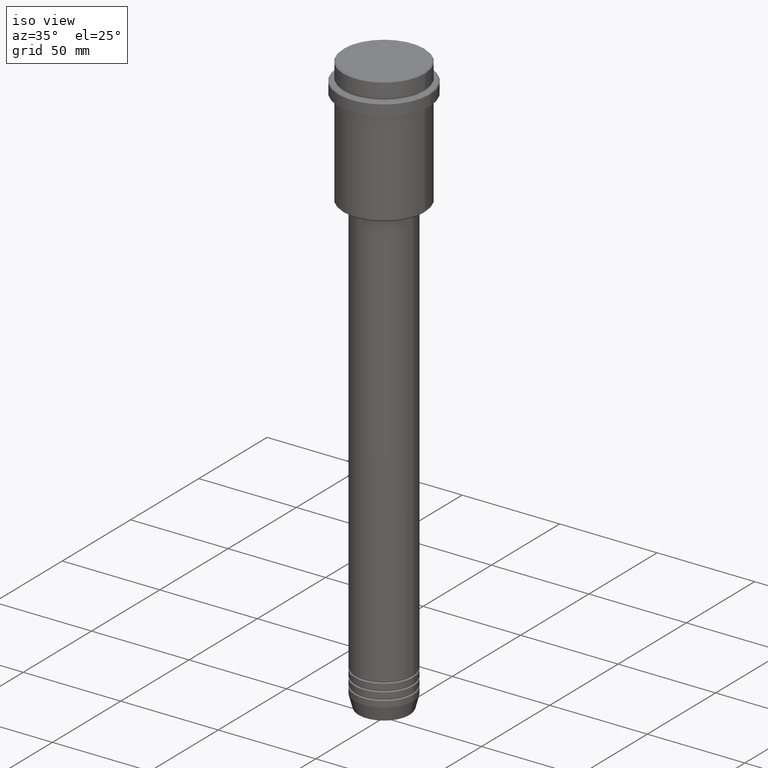
[diagram: clean part render]
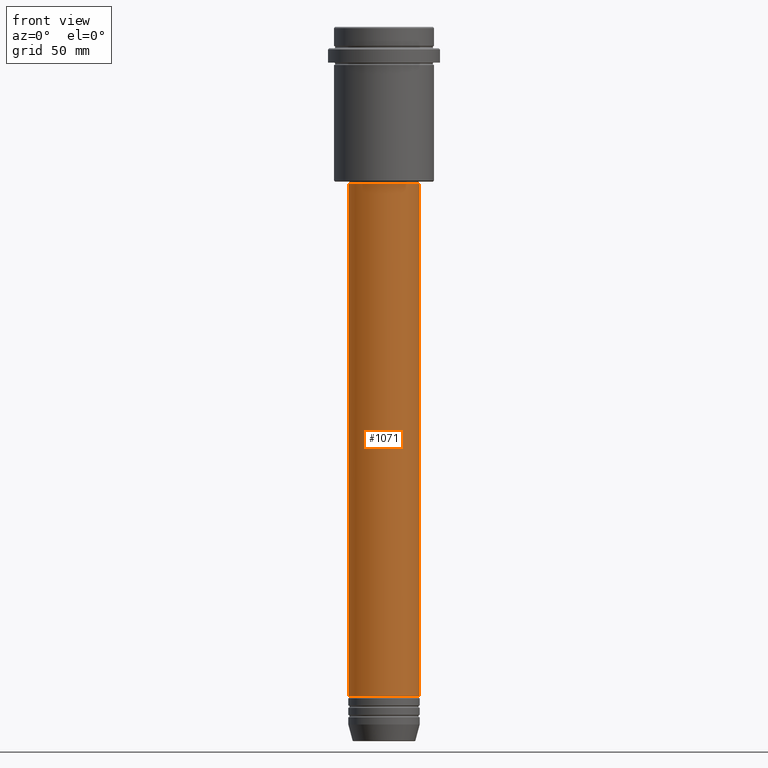
[diagram: tour spotlight — one face highlighted and labeled with its STEP entity id]
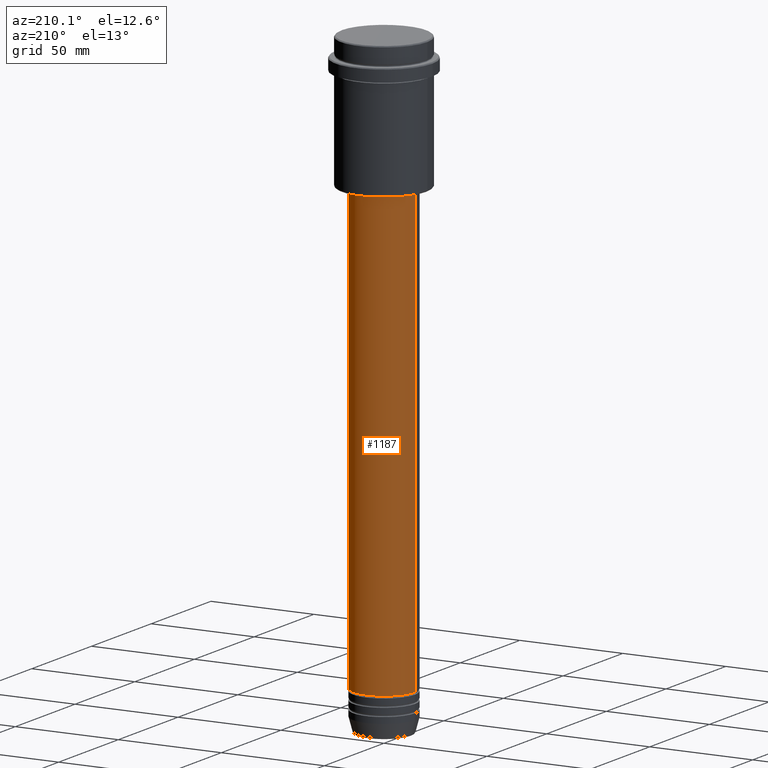
[diagram: tour spotlight — one face highlighted and labeled with its STEP entity id]
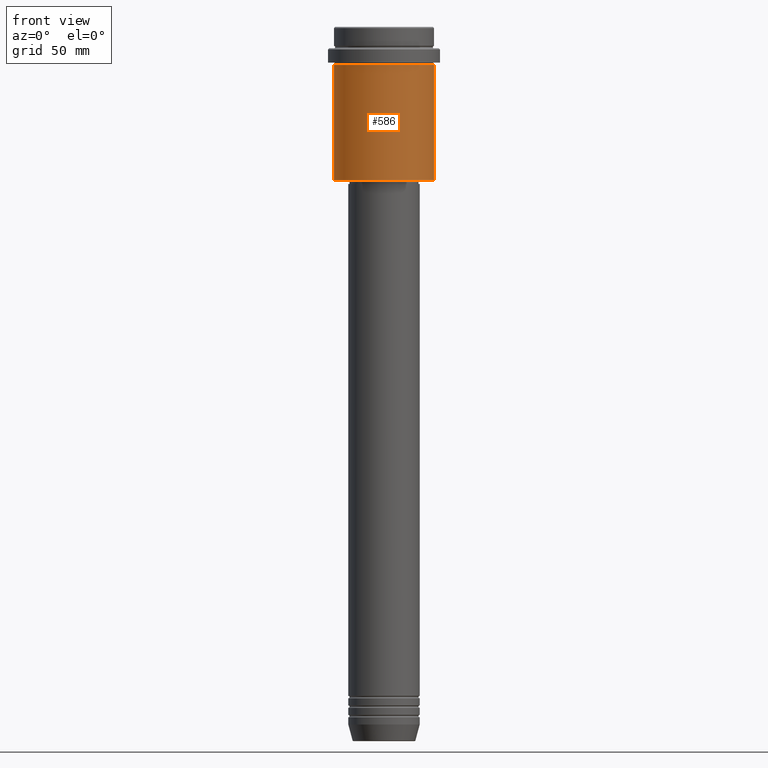
[diagram: tour spotlight — one face highlighted and labeled with its STEP entity id]
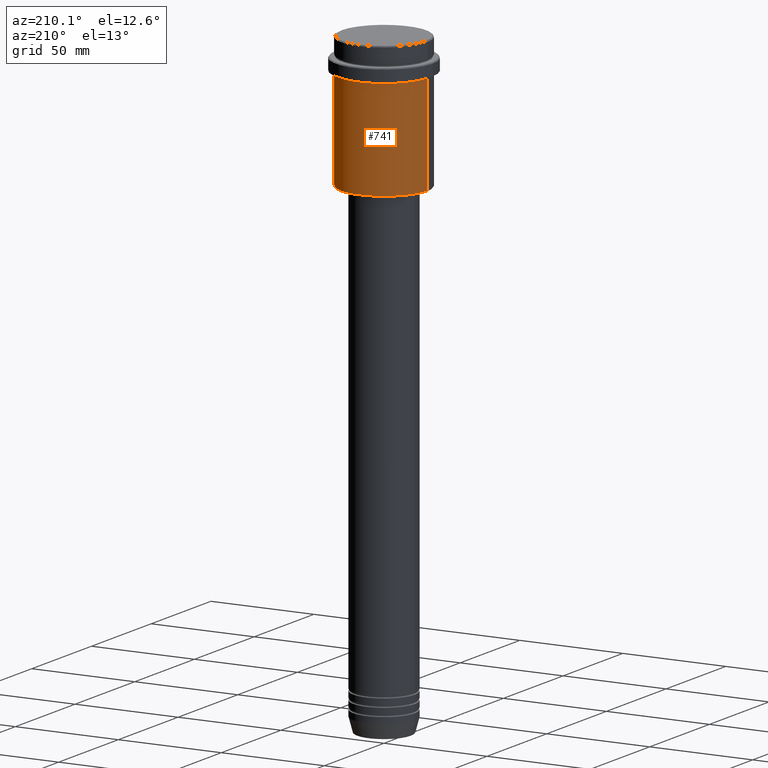
[diagram: tour spotlight — one face highlighted and labeled with its STEP entity id]
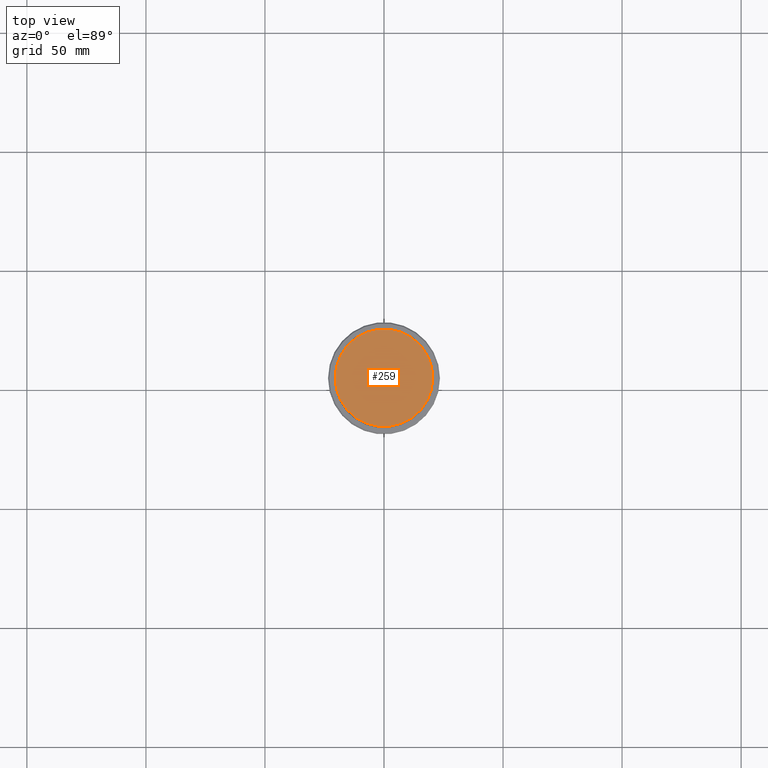
[diagram: tour spotlight — one face highlighted and labeled with its STEP entity id]
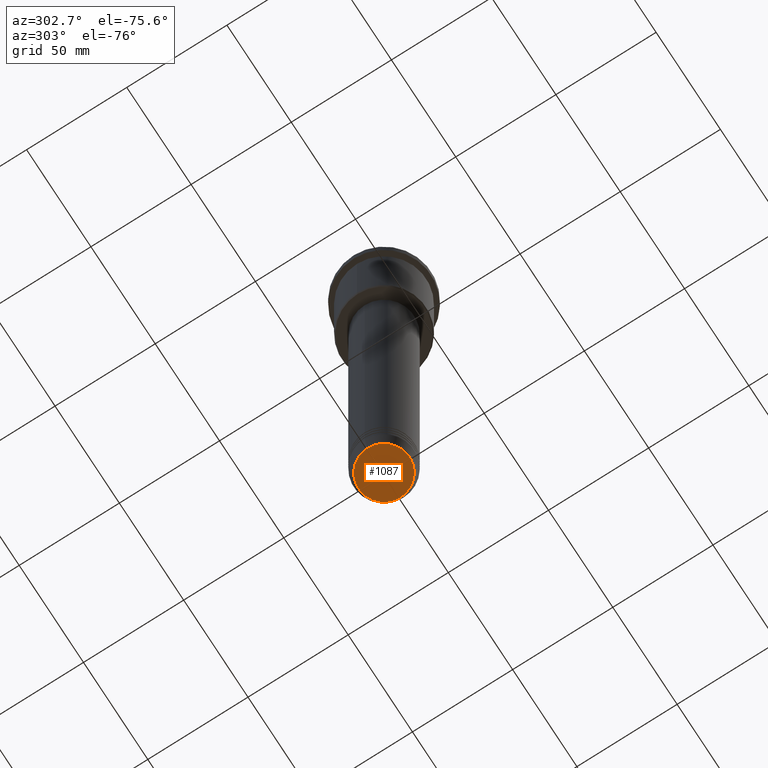
[diagram: tour spotlight — one face highlighted and labeled with its STEP entity id]
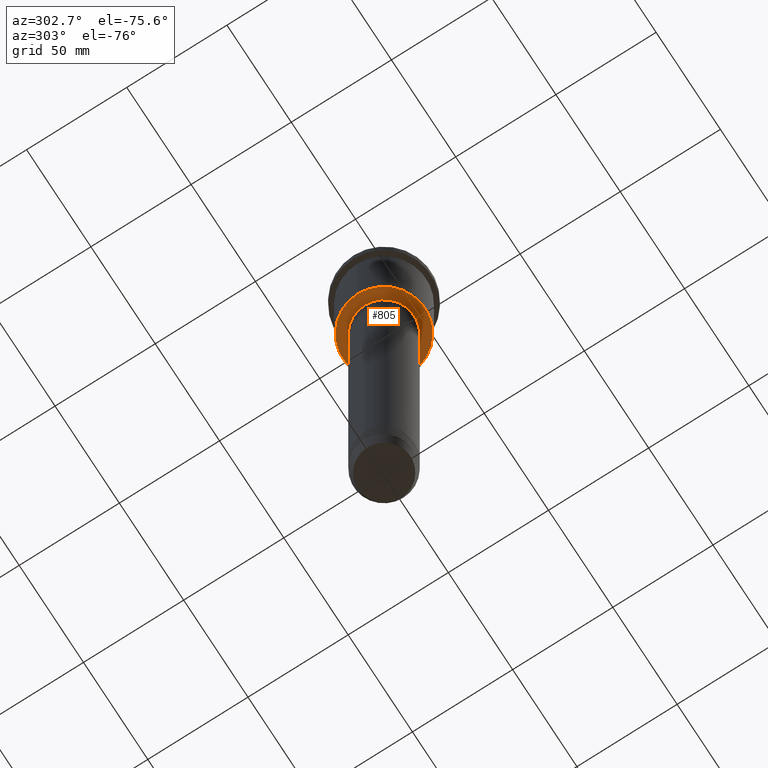
[diagram: tour spotlight — one face highlighted and labeled with its STEP entity id]
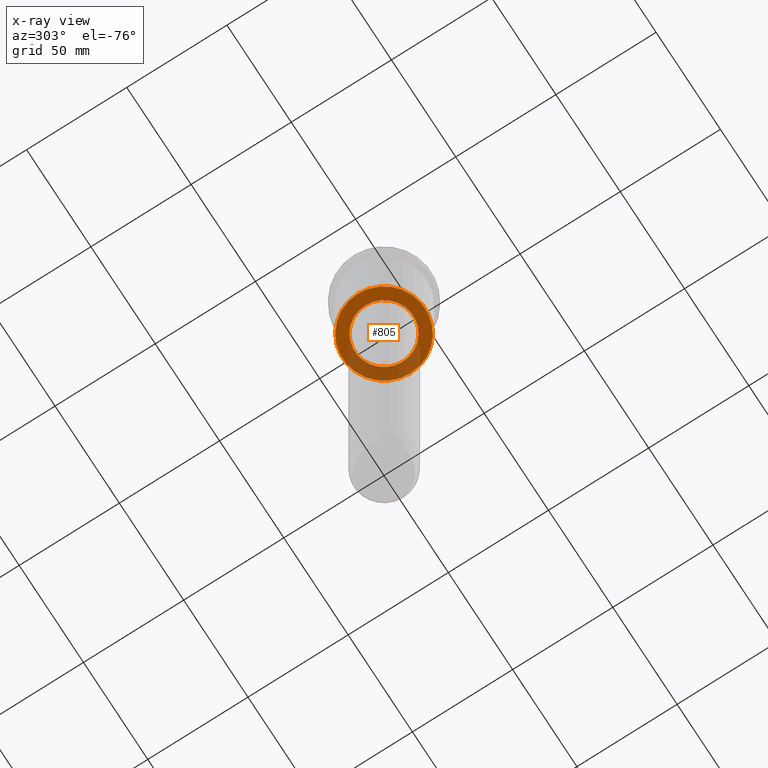
[diagram: x-ray of the same camera — body ghosted, this tour face saturated]
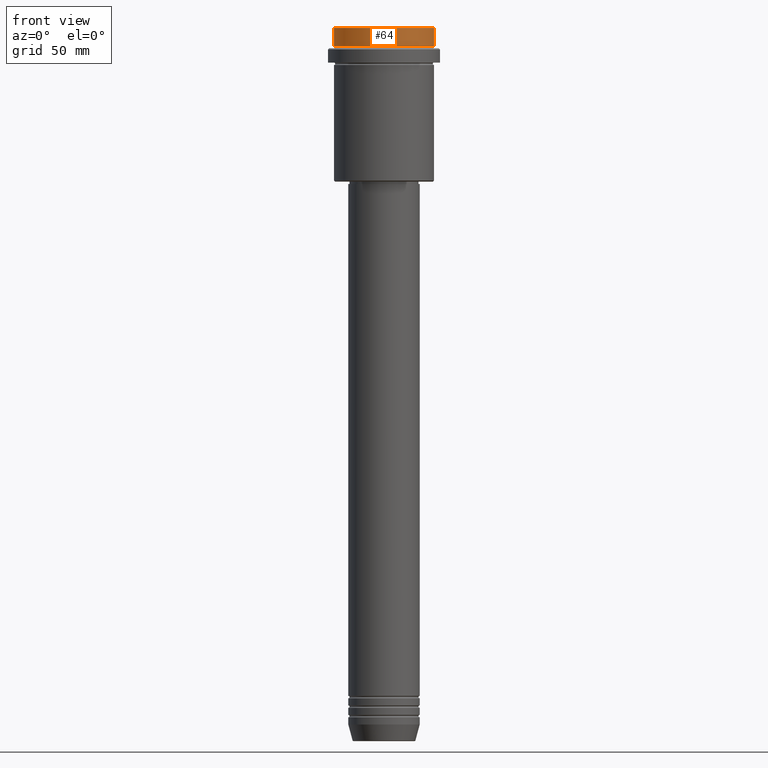
[diagram: tour spotlight — one face highlighted and labeled with its STEP entity id]
A machine part: a face-by-face anatomy tour. The part has 52 B-rep faces; the first image is the clean iso view, then the 8 largest visible faces are spotlighted one at a time (largest first), each with its STEP entity span.

Face 1 — front view, entity #1071. In plain terms, the highlighted cylindrical surface (edge-blend (fillet) strip) has radius 15 mm, axis along (-0, -0, 1).
Definition (entity closure, byte-faithful):
#7 = CARTESIAN_POINT ( 'NONE',  ( 15.00000000000000000, 0.000000000000000000, 0.000000000000000000 ) ) ;
#18 = CARTESIAN_POINT ( 'NONE',  ( 0.000000000000000000, 0.000000000000000000, -280.9999999999998863 ) ) ;
#27 = DIRECTION ( 'NONE',  ( -0.000000000000000000, -0.000000000000000000, 1.000000000000000000 ) ) ;
#32 = CARTESIAN_POINT ( 'NONE',  ( 15.00000000000000000, 0.000000000000000000, -280.9999999999998863 ) ) ;
#35 = ORIENTED_EDGE ( 'NONE', *, *, #990, .T. ) ;
#51 = ORIENTED_EDGE ( 'NONE', *, *, #950, .F. ) ;
#105 = DIRECTION ( 'NONE',  ( 1.000000000000000000, 0.000000000000000000, 0.000000000000000000 ) ) ;
#132 = AXIS2_PLACEMENT_3D ( 'NONE', #994, #1021, #229 ) ;
#141 = DIRECTION ( 'NONE',  ( -0.000000000000000000, -0.000000000000000000, 1.000000000000000000 ) ) ;
#183 = CARTESIAN_POINT ( 'NONE',  ( -15.00000000000000000, 1.836970198721029589E-15, 0.000000000000000000 ) ) ;
#195 = VERTEX_POINT ( 'NONE', #1337 ) ;
#212 = LINE ( 'NONE', #7, #221 ) ;
#221 = VECTOR ( 'NONE', #27, 1000.000000000000000 ) ;
#224 = VERTEX_POINT ( 'NONE', #32 ) ;
#229 = DIRECTION ( 'NONE',  ( 1.000000000000000000, 0.000000000000000000, 0.000000000000000000 ) ) ;
#250 = CYLINDRICAL_SURFACE ( 'NONE', #1309, 15.00000000000000000 ) ;
#269 = VERTEX_POINT ( 'NONE', #1138 ) ;
#428 = CIRCLE ( 'NONE', #1264, 15.00000000000000000 ) ;
#433 = CIRCLE ( 'NONE', #132, 15.00000000000000000 ) ;
#434 = EDGE_CURVE ( 'NONE', #195, #224, #428, .T. ) ;
#464 = ORIENTED_EDGE ( 'NONE', *, *, #434, .T. ) ;
#556 = ORIENTED_EDGE ( 'NONE', *, *, #757, .F. ) ;
#624 = DIRECTION ( 'NONE',  ( -0.000000000000000000, -0.000000000000000000, 1.000000000000000000 ) ) ;
#756 = EDGE_LOOP ( 'NONE', ( #556, #464, #35, #51 ) ) ;
#757 = EDGE_CURVE ( 'NONE', #195, #269, #1079, .T. ) ;
#818 = VECTOR ( 'NONE', #624, 1000.000000000000000 ) ;
#950 = EDGE_CURVE ( 'NONE', #269, #1379, #433, .T. ) ;
#969 = DIRECTION ( 'NONE',  ( -0.000000000000000000, -0.000000000000000000, 1.000000000000000000 ) ) ;
#990 = EDGE_CURVE ( 'NONE', #224, #1379, #212, .T. ) ;
#994 = CARTESIAN_POINT ( 'NONE',  ( 0.000000000000000000, 0.000000000000000000, -65.99999999999991473 ) ) ;
#1021 = DIRECTION ( 'NONE',  ( -0.000000000000000000, -0.000000000000000000, 1.000000000000000000 ) ) ;
#1071 = ADVANCED_FACE ( 'NONE', ( #1341 ), #250, .T. ) ;
#1079 = LINE ( 'NONE', #183, #818 ) ;
#1126 = CARTESIAN_POINT ( 'NONE',  ( 0.000000000000000000, 0.000000000000000000, 0.000000000000000000 ) ) ;
#1138 = CARTESIAN_POINT ( 'NONE',  ( -15.00000000000000000, 1.836970198721029589E-15, -65.99999999999991473 ) ) ;
#1264 = AXIS2_PLACEMENT_3D ( 'NONE', #18, #969, #105 ) ;
#1309 = AXIS2_PLACEMENT_3D ( 'NONE', #1126, #141, #1353 ) ;
#1337 = CARTESIAN_POINT ( 'NONE',  ( -15.00000000000000000, 1.836970198721029589E-15, -280.9999999999998863 ) ) ;
#1341 = FACE_OUTER_BOUND ( 'NONE', #756, .T. ) ;
#1353 = DIRECTION ( 'NONE',  ( 1.000000000000000000, 0.000000000000000000, 0.000000000000000000 ) ) ;
#1379 = VERTEX_POINT ( 'NONE', #1400 ) ;
#1400 = CARTESIAN_POINT ( 'NONE',  ( 15.00000000000000000, 0.000000000000000000, -65.99999999999991473 ) ) ;

Face 2 — auxiliary view, entity #1187. In plain terms, the highlighted cylindrical surface (edge-blend (fillet) strip) has radius 15 mm, axis along (-0, -0, 1).
Definition (entity closure, byte-faithful):
#7 = CARTESIAN_POINT ( 'NONE',  ( 15.00000000000000000, 0.000000000000000000, 0.000000000000000000 ) ) ;
#13 = FACE_OUTER_BOUND ( 'NONE', #1256, .T. ) ;
#27 = DIRECTION ( 'NONE',  ( -0.000000000000000000, -0.000000000000000000, 1.000000000000000000 ) ) ;
#32 = CARTESIAN_POINT ( 'NONE',  ( 15.00000000000000000, 0.000000000000000000, -280.9999999999998863 ) ) ;
#87 = ORIENTED_EDGE ( 'NONE', *, *, #392, .F. ) ;
#130 = AXIS2_PLACEMENT_3D ( 'NONE', #1099, #1077, #555 ) ;
#183 = CARTESIAN_POINT ( 'NONE',  ( -15.00000000000000000, 1.836970198721029589E-15, 0.000000000000000000 ) ) ;
#195 = VERTEX_POINT ( 'NONE', #1337 ) ;
#212 = LINE ( 'NONE', #7, #221 ) ;
#219 = CIRCLE ( 'NONE', #1023, 15.00000000000000000 ) ;
#221 = VECTOR ( 'NONE', #27, 1000.000000000000000 ) ;
#224 = VERTEX_POINT ( 'NONE', #32 ) ;
#269 = VERTEX_POINT ( 'NONE', #1138 ) ;
#392 = EDGE_CURVE ( 'NONE', #1379, #269, #219, .T. ) ;
#422 = EDGE_CURVE ( 'NONE', #224, #195, #454, .T. ) ;
#454 = CIRCLE ( 'NONE', #130, 15.00000000000000000 ) ;
#493 = CARTESIAN_POINT ( 'NONE',  ( 0.000000000000000000, 0.000000000000000000, 0.000000000000000000 ) ) ;
#555 = DIRECTION ( 'NONE',  ( 1.000000000000000000, 0.000000000000000000, 0.000000000000000000 ) ) ;
#572 = ORIENTED_EDGE ( 'NONE', *, *, #757, .T. ) ;
#624 = DIRECTION ( 'NONE',  ( -0.000000000000000000, -0.000000000000000000, 1.000000000000000000 ) ) ;
#658 = CARTESIAN_POINT ( 'NONE',  ( 0.000000000000000000, 0.000000000000000000, -65.99999999999991473 ) ) ;
#692 = CYLINDRICAL_SURFACE ( 'NONE', #733, 15.00000000000000000 ) ;
#733 = AXIS2_PLACEMENT_3D ( 'NONE', #493, #1356, #807 ) ;
#752 = DIRECTION ( 'NONE',  ( 1.000000000000000000, 0.000000000000000000, 0.000000000000000000 ) ) ;
#757 = EDGE_CURVE ( 'NONE', #195, #269, #1079, .T. ) ;
#807 = DIRECTION ( 'NONE',  ( 1.000000000000000000, 0.000000000000000000, 0.000000000000000000 ) ) ;
#818 = VECTOR ( 'NONE', #624, 1000.000000000000000 ) ;
#872 = DIRECTION ( 'NONE',  ( -0.000000000000000000, -0.000000000000000000, 1.000000000000000000 ) ) ;
#990 = EDGE_CURVE ( 'NONE', #224, #1379, #212, .T. ) ;
#1014 = ORIENTED_EDGE ( 'NONE', *, *, #990, .F. ) ;
#1023 = AXIS2_PLACEMENT_3D ( 'NONE', #658, #872, #752 ) ;
#1077 = DIRECTION ( 'NONE',  ( -0.000000000000000000, -0.000000000000000000, 1.000000000000000000 ) ) ;
#1079 = LINE ( 'NONE', #183, #818 ) ;
#1099 = CARTESIAN_POINT ( 'NONE',  ( 0.000000000000000000, 0.000000000000000000, -280.9999999999998863 ) ) ;
#1138 = CARTESIAN_POINT ( 'NONE',  ( -15.00000000000000000, 1.836970198721029589E-15, -65.99999999999991473 ) ) ;
#1187 = ADVANCED_FACE ( 'NONE', ( #13 ), #692, .T. ) ;
#1239 = ORIENTED_EDGE ( 'NONE', *, *, #422, .T. ) ;
#1256 = EDGE_LOOP ( 'NONE', ( #1239, #572, #87, #1014 ) ) ;
#1337 = CARTESIAN_POINT ( 'NONE',  ( -15.00000000000000000, 1.836970198721029589E-15, -280.9999999999998863 ) ) ;
#1356 = DIRECTION ( 'NONE',  ( -0.000000000000000000, -0.000000000000000000, 1.000000000000000000 ) ) ;
#1379 = VERTEX_POINT ( 'NONE', #1400 ) ;
#1400 = CARTESIAN_POINT ( 'NONE',  ( 15.00000000000000000, 0.000000000000000000, -65.99999999999991473 ) ) ;

Face 3 — front view, entity #586. In plain terms, the highlighted cylindrical surface (partial cylindrical patch) has radius 21 mm, axis along (-0, -0, 1).
Definition (entity closure, byte-faithful):
#80 = EDGE_CURVE ( 'NONE', #260, #826, #239, .T. ) ;
#148 = EDGE_LOOP ( 'NONE', ( #729, #1022, #1010, #626 ) ) ;
#172 = VECTOR ( 'NONE', #205, 1000.000000000000000 ) ;
#205 = DIRECTION ( 'NONE',  ( -0.000000000000000000, -0.000000000000000000, 1.000000000000000000 ) ) ;
#239 = CIRCLE ( 'NONE', #1395, 20.99999999999999645 ) ;
#260 = VERTEX_POINT ( 'NONE', #699 ) ;
#375 = CYLINDRICAL_SURFACE ( 'NONE', #611, 20.99999999999999645 ) ;
#403 = EDGE_CURVE ( 'NONE', #826, #1004, #1194, .T. ) ;
#477 = CARTESIAN_POINT ( 'NONE',  ( 20.99999999999999645, 0.000000000000000000, -16.00000000000000355 ) ) ;
#500 = CIRCLE ( 'NONE', #660, 20.99999999999999645 ) ;
#521 = CARTESIAN_POINT ( 'NONE',  ( 0.000000000000000000, 0.000000000000000000, -16.00000000000000355 ) ) ;
#554 = DIRECTION ( 'NONE',  ( -0.000000000000000000, -0.000000000000000000, 1.000000000000000000 ) ) ;
#557 = DIRECTION ( 'NONE',  ( -0.000000000000000000, -0.000000000000000000, 1.000000000000000000 ) ) ;
#586 = ADVANCED_FACE ( 'NONE', ( #798 ), #375, .T. ) ;
#599 = DIRECTION ( 'NONE',  ( -0.000000000000000000, -0.000000000000000000, 1.000000000000000000 ) ) ;
#611 = AXIS2_PLACEMENT_3D ( 'NONE', #709, #599, #1257 ) ;
#626 = ORIENTED_EDGE ( 'NONE', *, *, #717, .F. ) ;
#660 = AXIS2_PLACEMENT_3D ( 'NONE', #521, #827, #1389 ) ;
#680 = VECTOR ( 'NONE', #557, 1000.000000000000000 ) ;
#699 = CARTESIAN_POINT ( 'NONE',  ( -20.99999999999999645, 2.571758278209441267E-15, -64.49999999999992895 ) ) ;
#709 = CARTESIAN_POINT ( 'NONE',  ( 0.000000000000000000, 0.000000000000000000, 0.000000000000000000 ) ) ;
#717 = EDGE_CURVE ( 'NONE', #988, #1004, #500, .T. ) ;
#729 = ORIENTED_EDGE ( 'NONE', *, *, #1411, .F. ) ;
#798 = FACE_OUTER_BOUND ( 'NONE', #148, .T. ) ;
#826 = VERTEX_POINT ( 'NONE', #923 ) ;
#827 = DIRECTION ( 'NONE',  ( -0.000000000000000000, -0.000000000000000000, 1.000000000000000000 ) ) ;
#868 = CARTESIAN_POINT ( 'NONE',  ( -20.99999999999999645, 2.571758278209441267E-15, -16.00000000000000355 ) ) ;
#923 = CARTESIAN_POINT ( 'NONE',  ( 20.99999999999999645, 0.000000000000000000, -64.49999999999992895 ) ) ;
#968 = CARTESIAN_POINT ( 'NONE',  ( 0.000000000000000000, 0.000000000000000000, -64.49999999999992895 ) ) ;
#986 = DIRECTION ( 'NONE',  ( -1.000000000000000000, 0.000000000000000000, 0.000000000000000000 ) ) ;
#987 = CARTESIAN_POINT ( 'NONE',  ( 20.99999999999999645, 0.000000000000000000, 0.000000000000000000 ) ) ;
#988 = VERTEX_POINT ( 'NONE', #868 ) ;
#1004 = VERTEX_POINT ( 'NONE', #477 ) ;
#1010 = ORIENTED_EDGE ( 'NONE', *, *, #403, .T. ) ;
#1022 = ORIENTED_EDGE ( 'NONE', *, *, #80, .T. ) ;
#1194 = LINE ( 'NONE', #987, #172 ) ;
#1206 = CARTESIAN_POINT ( 'NONE',  ( -20.99999999999999645, 2.571758278209441267E-15, 0.000000000000000000 ) ) ;
#1257 = DIRECTION ( 'NONE',  ( 1.000000000000000000, 0.000000000000000000, 0.000000000000000000 ) ) ;
#1310 = LINE ( 'NONE', #1206, #680 ) ;
#1389 = DIRECTION ( 'NONE',  ( 1.000000000000000000, 0.000000000000000000, 0.000000000000000000 ) ) ;
#1395 = AXIS2_PLACEMENT_3D ( 'NONE', #968, #554, #986 ) ;
#1411 = EDGE_CURVE ( 'NONE', #260, #988, #1310, .T. ) ;

Face 4 — auxiliary view, entity #741. In plain terms, the highlighted cylindrical surface (partial cylindrical patch) has radius 21 mm, axis along (-0, -0, 1).
Definition (entity closure, byte-faithful):
#16 = DIRECTION ( 'NONE',  ( -0.000000000000000000, -0.000000000000000000, 1.000000000000000000 ) ) ;
#22 = CARTESIAN_POINT ( 'NONE',  ( 0.000000000000000000, 0.000000000000000000, -64.49999999999992895 ) ) ;
#30 = AXIS2_PLACEMENT_3D ( 'NONE', #285, #84, #761 ) ;
#84 = DIRECTION ( 'NONE',  ( -0.000000000000000000, -0.000000000000000000, 1.000000000000000000 ) ) ;
#151 = AXIS2_PLACEMENT_3D ( 'NONE', #22, #16, #442 ) ;
#172 = VECTOR ( 'NONE', #205, 1000.000000000000000 ) ;
#197 = CARTESIAN_POINT ( 'NONE',  ( 0.000000000000000000, 0.000000000000000000, 0.000000000000000000 ) ) ;
#205 = DIRECTION ( 'NONE',  ( -0.000000000000000000, -0.000000000000000000, 1.000000000000000000 ) ) ;
#260 = VERTEX_POINT ( 'NONE', #699 ) ;
#285 = CARTESIAN_POINT ( 'NONE',  ( 0.000000000000000000, 0.000000000000000000, -16.00000000000000355 ) ) ;
#312 = FACE_OUTER_BOUND ( 'NONE', #395, .T. ) ;
#395 = EDGE_LOOP ( 'NONE', ( #1376, #723, #1151, #843 ) ) ;
#403 = EDGE_CURVE ( 'NONE', #826, #1004, #1194, .T. ) ;
#431 = AXIS2_PLACEMENT_3D ( 'NONE', #197, #1417, #1398 ) ;
#442 = DIRECTION ( 'NONE',  ( -1.000000000000000000, 0.000000000000000000, 0.000000000000000000 ) ) ;
#455 = CIRCLE ( 'NONE', #30, 20.99999999999999645 ) ;
#477 = CARTESIAN_POINT ( 'NONE',  ( 20.99999999999999645, 0.000000000000000000, -16.00000000000000355 ) ) ;
#514 = EDGE_CURVE ( 'NONE', #826, #260, #749, .T. ) ;
#557 = DIRECTION ( 'NONE',  ( -0.000000000000000000, -0.000000000000000000, 1.000000000000000000 ) ) ;
#680 = VECTOR ( 'NONE', #557, 1000.000000000000000 ) ;
#699 = CARTESIAN_POINT ( 'NONE',  ( -20.99999999999999645, 2.571758278209441267E-15, -64.49999999999992895 ) ) ;
#723 = ORIENTED_EDGE ( 'NONE', *, *, #1411, .T. ) ;
#741 = ADVANCED_FACE ( 'NONE', ( #312 ), #960, .T. ) ;
#749 = CIRCLE ( 'NONE', #151, 20.99999999999999645 ) ;
#761 = DIRECTION ( 'NONE',  ( 1.000000000000000000, 0.000000000000000000, 0.000000000000000000 ) ) ;
#783 = EDGE_CURVE ( 'NONE', #1004, #988, #455, .T. ) ;
#826 = VERTEX_POINT ( 'NONE', #923 ) ;
#843 = ORIENTED_EDGE ( 'NONE', *, *, #403, .F. ) ;
#868 = CARTESIAN_POINT ( 'NONE',  ( -20.99999999999999645, 2.571758278209441267E-15, -16.00000000000000355 ) ) ;
#923 = CARTESIAN_POINT ( 'NONE',  ( 20.99999999999999645, 0.000000000000000000, -64.49999999999992895 ) ) ;
#960 = CYLINDRICAL_SURFACE ( 'NONE', #431, 20.99999999999999645 ) ;
#987 = CARTESIAN_POINT ( 'NONE',  ( 20.99999999999999645, 0.000000000000000000, 0.000000000000000000 ) ) ;
#988 = VERTEX_POINT ( 'NONE', #868 ) ;
#1004 = VERTEX_POINT ( 'NONE', #477 ) ;
#1151 = ORIENTED_EDGE ( 'NONE', *, *, #783, .F. ) ;
#1194 = LINE ( 'NONE', #987, #172 ) ;
#1206 = CARTESIAN_POINT ( 'NONE',  ( -20.99999999999999645, 2.571758278209441267E-15, 0.000000000000000000 ) ) ;
#1310 = LINE ( 'NONE', #1206, #680 ) ;
#1376 = ORIENTED_EDGE ( 'NONE', *, *, #514, .T. ) ;
#1398 = DIRECTION ( 'NONE',  ( 1.000000000000000000, 0.000000000000000000, 0.000000000000000000 ) ) ;
#1411 = EDGE_CURVE ( 'NONE', #260, #988, #1310, .T. ) ;
#1417 = DIRECTION ( 'NONE',  ( -0.000000000000000000, -0.000000000000000000, 1.000000000000000000 ) ) ;

Face 5 — top view, entity #259. In plain terms, the highlighted planar face has unit normal (0, -0, 1).
Definition (entity closure, byte-faithful):
#36 = FACE_OUTER_BOUND ( 'NONE', #176, .T. ) ;
#38 = VERTEX_POINT ( 'NONE', #992 ) ;
#39 = EDGE_CURVE ( 'NONE', #38, #147, #973, .T. ) ;
#104 = DIRECTION ( 'NONE',  ( 1.000000000000000000, 0.000000000000000000, 0.000000000000000000 ) ) ;
#147 = VERTEX_POINT ( 'NONE', #543 ) ;
#176 = EDGE_LOOP ( 'NONE', ( #505, #866 ) ) ;
#246 = DIRECTION ( 'NONE',  ( 1.000000000000000000, 0.000000000000000000, 0.000000000000000000 ) ) ;
#257 = PLANE ( 'NONE',  #630 ) ;
#259 = ADVANCED_FACE ( 'NONE', ( #36 ), #257, .T. ) ;
#358 = AXIS2_PLACEMENT_3D ( 'NONE', #1409, #1179, #417 ) ;
#417 = DIRECTION ( 'NONE',  ( 1.000000000000000000, 0.000000000000000000, 0.000000000000000000 ) ) ;
#461 = CARTESIAN_POINT ( 'NONE',  ( 0.000000000000000000, 0.000000000000000000, 0.000000000000000000 ) ) ;
#505 = ORIENTED_EDGE ( 'NONE', *, *, #39, .T. ) ;
#543 = CARTESIAN_POINT ( 'NONE',  ( 20.50000000000001776, 2.541142108230758663E-15, 0.000000000000000000 ) ) ;
#588 = AXIS2_PLACEMENT_3D ( 'NONE', #751, #1193, #104 ) ;
#630 = AXIS2_PLACEMENT_3D ( 'NONE', #461, #1237, #246 ) ;
#672 = EDGE_CURVE ( 'NONE', #147, #38, #774, .T. ) ;
#751 = CARTESIAN_POINT ( 'NONE',  ( 0.000000000000000000, 0.000000000000000000, 0.000000000000000000 ) ) ;
#774 = CIRCLE ( 'NONE', #358, 20.50000000000001776 ) ;
#866 = ORIENTED_EDGE ( 'NONE', *, *, #672, .T. ) ;
#973 = CIRCLE ( 'NONE', #588, 20.50000000000001776 ) ;
#992 = CARTESIAN_POINT ( 'NONE',  ( -20.50000000000001776, 0.000000000000000000, 0.000000000000000000 ) ) ;
#1179 = DIRECTION ( 'NONE',  ( -0.000000000000000000, -0.000000000000000000, 1.000000000000000000 ) ) ;
#1193 = DIRECTION ( 'NONE',  ( -0.000000000000000000, -0.000000000000000000, 1.000000000000000000 ) ) ;
#1237 = DIRECTION ( 'NONE',  ( 0.000000000000000000, -0.000000000000000000, 1.000000000000000000 ) ) ;
#1409 = CARTESIAN_POINT ( 'NONE',  ( 0.000000000000000000, 0.000000000000000000, 0.000000000000000000 ) ) ;

Face 6 — auxiliary view, entity #1087. In plain terms, the highlighted planar face has unit normal (0, -0, 1).
Definition (entity closure, byte-faithful):
#45 = CARTESIAN_POINT ( 'NONE',  ( 12.74069215899265828, 0.000000000000000000, -300.0000000000000000 ) ) ;
#336 = CARTESIAN_POINT ( 'NONE',  ( 0.000000000000000000, 0.000000000000000000, -300.0000000000000000 ) ) ;
#355 = CIRCLE ( 'NONE', #835, 12.74069215899265828 ) ;
#360 = FACE_OUTER_BOUND ( 'NONE', #670, .T. ) ;
#430 = ORIENTED_EDGE ( 'NONE', *, *, #1178, .T. ) ;
#605 = EDGE_CURVE ( 'NONE', #792, #1176, #355, .T. ) ;
#635 = AXIS2_PLACEMENT_3D ( 'NONE', #1147, #924, #1258 ) ;
#670 = EDGE_LOOP ( 'NONE', ( #922, #430 ) ) ;
#780 = DIRECTION ( 'NONE',  ( 0.000000000000000000, 0.000000000000000000, -1.000000000000000000 ) ) ;
#792 = VERTEX_POINT ( 'NONE', #45 ) ;
#796 = CIRCLE ( 'NONE', #1268, 12.74069215899265828 ) ;
#835 = AXIS2_PLACEMENT_3D ( 'NONE', #1136, #1267, #1152 ) ;
#922 = ORIENTED_EDGE ( 'NONE', *, *, #605, .T. ) ;
#924 = DIRECTION ( 'NONE',  ( 0.000000000000000000, -0.000000000000000000, 1.000000000000000000 ) ) ;
#985 = CARTESIAN_POINT ( 'NONE',  ( -12.74069215899265828, 1.589857736427680246E-15, -300.0000000000000000 ) ) ;
#1087 = ADVANCED_FACE ( 'NONE', ( #360 ), #1245, .F. ) ;
#1112 = DIRECTION ( 'NONE',  ( 1.000000000000000000, 0.000000000000000000, 0.000000000000000000 ) ) ;
#1136 = CARTESIAN_POINT ( 'NONE',  ( 0.000000000000000000, 0.000000000000000000, -300.0000000000000000 ) ) ;
#1147 = CARTESIAN_POINT ( 'NONE',  ( 0.000000000000000000, 0.000000000000000000, -300.0000000000000000 ) ) ;
#1152 = DIRECTION ( 'NONE',  ( 1.000000000000000000, 0.000000000000000000, 0.000000000000000000 ) ) ;
#1176 = VERTEX_POINT ( 'NONE', #985 ) ;
#1178 = EDGE_CURVE ( 'NONE', #1176, #792, #796, .T. ) ;
#1245 = PLANE ( 'NONE',  #635 ) ;
#1258 = DIRECTION ( 'NONE',  ( 1.000000000000000000, 0.000000000000000000, 0.000000000000000000 ) ) ;
#1267 = DIRECTION ( 'NONE',  ( 0.000000000000000000, 0.000000000000000000, -1.000000000000000000 ) ) ;
#1268 = AXIS2_PLACEMENT_3D ( 'NONE', #336, #780, #1112 ) ;

Face 7 — auxiliary view, entity #805. An x-ray twin of the same camera follows (body ghosted, this face saturated) — the face is partly hidden behind the body. In plain terms, the highlighted planar face has unit normal (0, 0, -1).
Definition (entity closure, byte-faithful):
#6 = CIRCLE ( 'NONE', #793, 14.49999999999999822 ) ;
#11 = AXIS2_PLACEMENT_3D ( 'NONE', #1233, #706, #481 ) ;
#48 = CARTESIAN_POINT ( 'NONE',  ( 14.49999999999999822, 0.000000000000000000, -64.99999999999997158 ) ) ;
#73 = EDGE_LOOP ( 'NONE', ( #1040, #1107 ) ) ;
#92 = AXIS2_PLACEMENT_3D ( 'NONE', #1017, #696, #1130 ) ;
#174 = AXIS2_PLACEMENT_3D ( 'NONE', #829, #1279, #1059 ) ;
#186 = VERTEX_POINT ( 'NONE', #48 ) ;
#238 = EDGE_LOOP ( 'NONE', ( #1078, #1065 ) ) ;
#254 = FACE_BOUND ( 'NONE', #238, .T. ) ;
#341 = VERTEX_POINT ( 'NONE', #664 ) ;
#344 = CARTESIAN_POINT ( 'NONE',  ( -14.49999999999999822, 1.775737858763662015E-15, -64.99999999999997158 ) ) ;
#365 = CARTESIAN_POINT ( 'NONE',  ( 0.000000000000000000, 0.000000000000000000, -64.99999999999997158 ) ) ;
#384 = PLANE ( 'NONE',  #92 ) ;
#460 = VERTEX_POINT ( 'NONE', #344 ) ;
#481 = DIRECTION ( 'NONE',  ( -1.000000000000000000, 0.000000000000000000, 0.000000000000000000 ) ) ;
#530 = CARTESIAN_POINT ( 'NONE',  ( -20.49999999999996447, 2.541142108230755507E-15, -64.99999999999998579 ) ) ;
#597 = EDGE_CURVE ( 'NONE', #460, #186, #6, .T. ) ;
#664 = CARTESIAN_POINT ( 'NONE',  ( 20.49999999999996447, 0.000000000000000000, -64.99999999999998579 ) ) ;
#696 = DIRECTION ( 'NONE',  ( 0.000000000000000000, 0.000000000000000000, -1.000000000000000000 ) ) ;
#705 = DIRECTION ( 'NONE',  ( -0.000000000000000000, -0.000000000000000000, 1.000000000000000000 ) ) ;
#706 = DIRECTION ( 'NONE',  ( 0.000000000000000000, 0.000000000000000000, -1.000000000000000000 ) ) ;
#713 = CIRCLE ( 'NONE', #11, 20.49999999999996447 ) ;
#734 = EDGE_CURVE ( 'NONE', #341, #913, #1166, .T. ) ;
#793 = AXIS2_PLACEMENT_3D ( 'NONE', #365, #705, #1372 ) ;
#805 = ADVANCED_FACE ( 'NONE', ( #1029, #254 ), #384, .T. ) ;
#829 = CARTESIAN_POINT ( 'NONE',  ( 0.000000000000000000, 0.000000000000000000, -64.99999999999997158 ) ) ;
#861 = CIRCLE ( 'NONE', #174, 14.49999999999999822 ) ;
#890 = EDGE_CURVE ( 'NONE', #186, #460, #861, .T. ) ;
#913 = VERTEX_POINT ( 'NONE', #530 ) ;
#939 = DIRECTION ( 'NONE',  ( -1.000000000000000000, 0.000000000000000000, 0.000000000000000000 ) ) ;
#948 = CARTESIAN_POINT ( 'NONE',  ( 0.000000000000000000, 0.000000000000000000, -64.99999999999998579 ) ) ;
#1017 = CARTESIAN_POINT ( 'NONE',  ( 0.000000000000000000, 21.00000000000000000, -64.99999999999998579 ) ) ;
#1029 = FACE_OUTER_BOUND ( 'NONE', #73, .T. ) ;
#1040 = ORIENTED_EDGE ( 'NONE', *, *, #734, .T. ) ;
#1059 = DIRECTION ( 'NONE',  ( 1.000000000000000000, 0.000000000000000000, 0.000000000000000000 ) ) ;
#1065 = ORIENTED_EDGE ( 'NONE', *, *, #597, .T. ) ;
#1078 = ORIENTED_EDGE ( 'NONE', *, *, #890, .T. ) ;
#1107 = ORIENTED_EDGE ( 'NONE', *, *, #1296, .T. ) ;
#1130 = DIRECTION ( 'NONE',  ( -1.000000000000000000, 0.000000000000000000, -0.000000000000000000 ) ) ;
#1166 = CIRCLE ( 'NONE', #1217, 20.49999999999996447 ) ;
#1185 = DIRECTION ( 'NONE',  ( 0.000000000000000000, 0.000000000000000000, -1.000000000000000000 ) ) ;
#1217 = AXIS2_PLACEMENT_3D ( 'NONE', #948, #1185, #939 ) ;
#1233 = CARTESIAN_POINT ( 'NONE',  ( 0.000000000000000000, 0.000000000000000000, -64.99999999999998579 ) ) ;
#1279 = DIRECTION ( 'NONE',  ( -0.000000000000000000, -0.000000000000000000, 1.000000000000000000 ) ) ;
#1296 = EDGE_CURVE ( 'NONE', #913, #341, #713, .T. ) ;
#1372 = DIRECTION ( 'NONE',  ( 1.000000000000000000, 0.000000000000000000, 0.000000000000000000 ) ) ;

Face 8 — front view, entity #64. In plain terms, the highlighted cylindrical surface (partial cylindrical patch) has radius 21 mm, axis along (-0, -0, 1).
Definition (entity closure, byte-faithful):
#17 = DIRECTION ( 'NONE',  ( -0.000000000000000000, -0.000000000000000000, 1.000000000000000000 ) ) ;
#33 = CIRCLE ( 'NONE', #1240, 20.99999999999999645 ) ;
#50 = DIRECTION ( 'NONE',  ( 1.000000000000000000, 0.000000000000000000, 0.000000000000000000 ) ) ;
#54 = DIRECTION ( 'NONE',  ( 1.000000000000000000, 0.000000000000000000, 0.000000000000000000 ) ) ;
#58 = ORIENTED_EDGE ( 'NONE', *, *, #998, .T. ) ;
#64 = ADVANCED_FACE ( 'NONE', ( #534 ), #215, .T. ) ;
#108 = CARTESIAN_POINT ( 'NONE',  ( 0.000000000000000000, 0.000000000000000000, 0.000000000000000000 ) ) ;
#128 = CARTESIAN_POINT ( 'NONE',  ( 0.000000000000000000, 0.000000000000000000, -7.999999999999998224 ) ) ;
#143 = EDGE_CURVE ( 'NONE', #893, #1025, #758, .T. ) ;
#156 = CARTESIAN_POINT ( 'NONE',  ( 0.000000000000000000, 0.000000000000000000, -0.4999999999999518718 ) ) ;
#209 = DIRECTION ( 'NONE',  ( -0.000000000000000000, -0.000000000000000000, 1.000000000000000000 ) ) ;
#215 = CYLINDRICAL_SURFACE ( 'NONE', #1283, 20.99999999999999645 ) ;
#286 = CARTESIAN_POINT ( 'NONE',  ( -20.99999999999999645, 2.571758278209441267E-15, -7.999999999999998224 ) ) ;
#315 = CARTESIAN_POINT ( 'NONE',  ( 20.99999999999999645, 0.000000000000000000, 0.000000000000000000 ) ) ;
#328 = CARTESIAN_POINT ( 'NONE',  ( -20.99999999999999645, 2.571758278209441267E-15, 0.000000000000000000 ) ) ;
#485 = EDGE_LOOP ( 'NONE', ( #1139, #58, #1338, #802 ) ) ;
#534 = FACE_OUTER_BOUND ( 'NONE', #485, .T. ) ;
#544 = AXIS2_PLACEMENT_3D ( 'NONE', #156, #816, #54 ) ;
#623 = EDGE_CURVE ( 'NONE', #921, #1025, #1165, .T. ) ;
#758 = LINE ( 'NONE', #328, #1235 ) ;
#769 = DIRECTION ( 'NONE',  ( 1.000000000000000000, 0.000000000000000000, 0.000000000000000000 ) ) ;
#777 = VECTOR ( 'NONE', #1299, 1000.000000000000000 ) ;
#802 = ORIENTED_EDGE ( 'NONE', *, *, #623, .T. ) ;
#816 = DIRECTION ( 'NONE',  ( 0.000000000000000000, 0.000000000000000000, -1.000000000000000000 ) ) ;
#859 = LINE ( 'NONE', #315, #777 ) ;
#869 = CARTESIAN_POINT ( 'NONE',  ( 20.99999999999999645, 0.000000000000000000, -7.999999999999998224 ) ) ;
#885 = CARTESIAN_POINT ( 'NONE',  ( 20.99999999999999645, 0.000000000000000000, -0.4999999999999518718 ) ) ;
#893 = VERTEX_POINT ( 'NONE', #286 ) ;
#912 = DIRECTION ( 'NONE',  ( -0.000000000000000000, -0.000000000000000000, 1.000000000000000000 ) ) ;
#921 = VERTEX_POINT ( 'NONE', #885 ) ;
#998 = EDGE_CURVE ( 'NONE', #893, #1160, #33, .T. ) ;
#1025 = VERTEX_POINT ( 'NONE', #1038 ) ;
#1038 = CARTESIAN_POINT ( 'NONE',  ( -20.99999999999999645, 2.571758278209441267E-15, -0.4999999999999518718 ) ) ;
#1139 = ORIENTED_EDGE ( 'NONE', *, *, #143, .F. ) ;
#1141 = EDGE_CURVE ( 'NONE', #1160, #921, #859, .T. ) ;
#1160 = VERTEX_POINT ( 'NONE', #869 ) ;
#1165 = CIRCLE ( 'NONE', #544, 20.99999999999999645 ) ;
#1235 = VECTOR ( 'NONE', #209, 1000.000000000000000 ) ;
#1240 = AXIS2_PLACEMENT_3D ( 'NONE', #128, #912, #50 ) ;
#1283 = AXIS2_PLACEMENT_3D ( 'NONE', #108, #17, #769 ) ;
#1299 = DIRECTION ( 'NONE',  ( -0.000000000000000000, -0.000000000000000000, 1.000000000000000000 ) ) ;
#1338 = ORIENTED_EDGE ( 'NONE', *, *, #1141, .T. ) ;